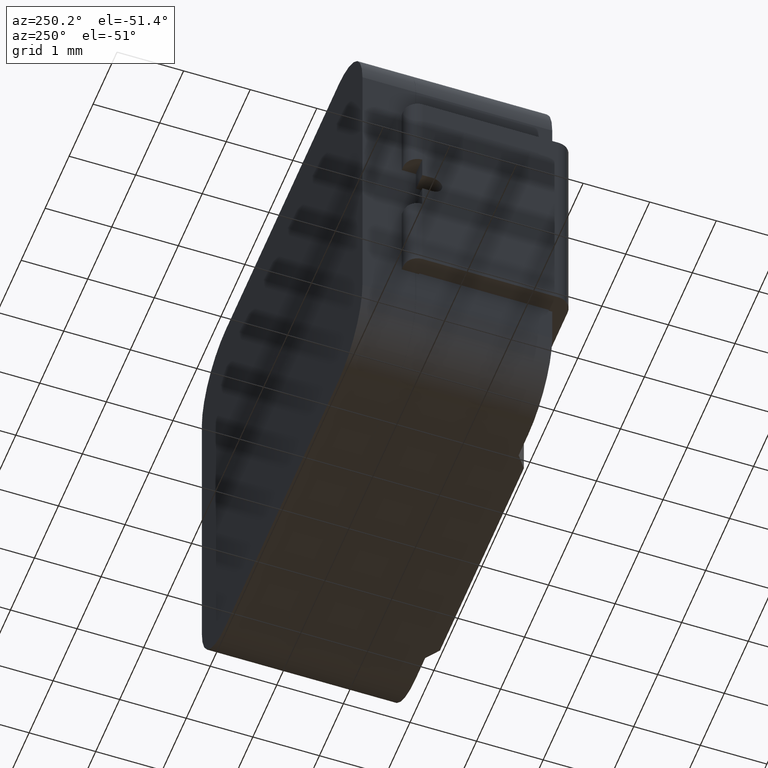
[diagram: clean part render]
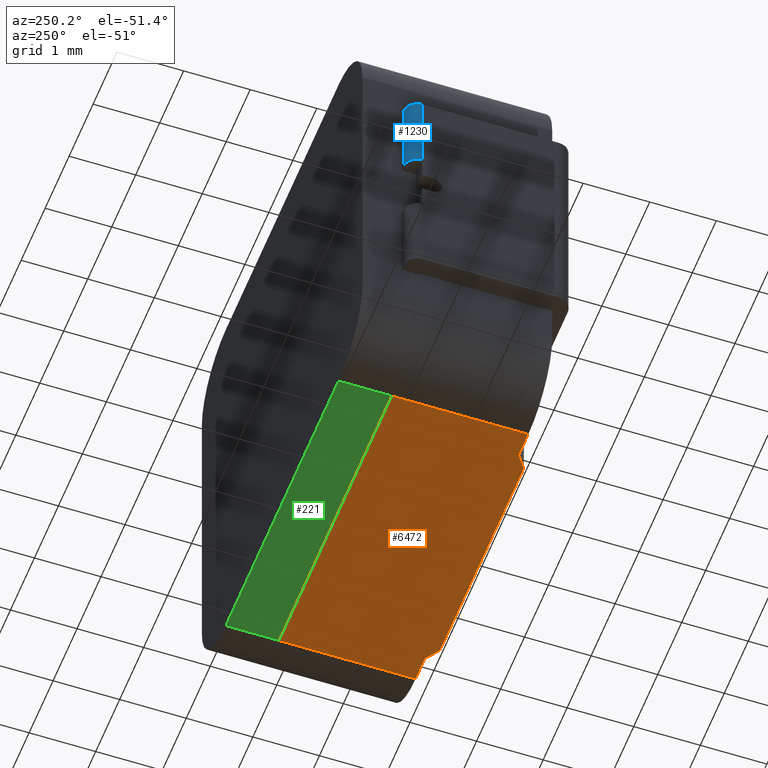
[diagram: same view with three faces highlighted in distinct colors, each labeled with its STEP entity id]
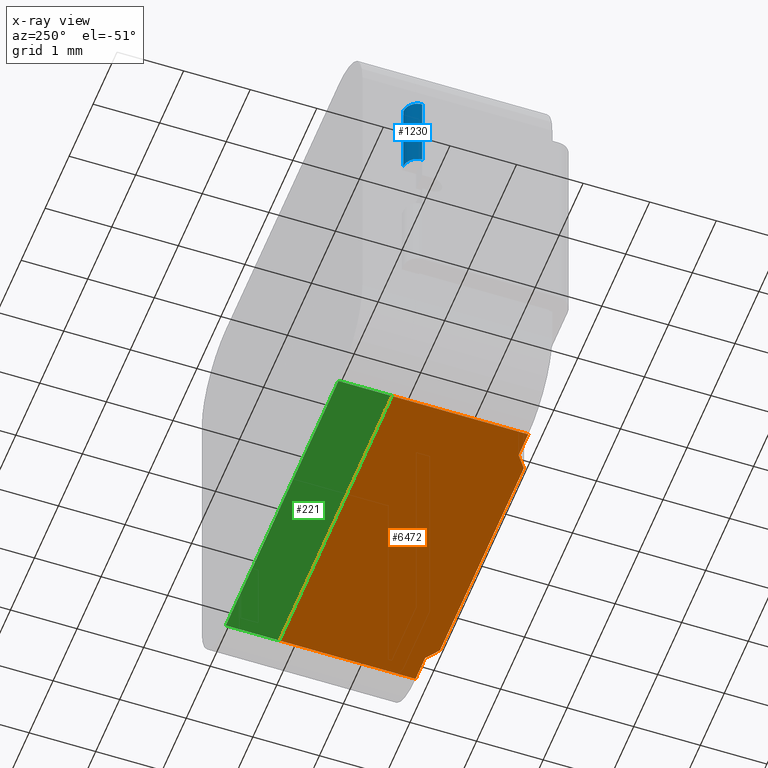
[diagram: x-ray of the same camera — body ghosted, the three highlighted faces saturated]
A machine part, auxiliary view with three faces highlighted in distinct colors.
The next image is the same camera in x-ray (body ghosted, the three faces saturated) — at least one of them is partly hidden behind the body in this view.
Their STEP definitions:

[orange] entity #6472 — the highlighted planar face has unit normal (0, -0, 1).
#198 = ORIENTED_EDGE ( 'NONE', *, *, #3639, .T. ) ;
#268 = VECTOR ( 'NONE', #1400, 1000.000000000000000 ) ;
#363 = LINE ( 'NONE', #6239, #3091 ) ;
#371 = DIRECTION ( 'NONE',  ( -0.7999999999999998224, -0.6000000000000001998, 0.0000000000000000000 ) ) ;
#544 = ORIENTED_EDGE ( 'NONE', *, *, #6163, .F. ) ;
#572 = VECTOR ( 'NONE', #4803, 1000.000000000000000 ) ;
#949 = DIRECTION ( 'NONE',  ( -1.000000000000000000, -6.001833454830465621E-16, 0.0000000000000000000 ) ) ;
#1012 = FACE_OUTER_BOUND ( 'NONE', #6102, .T. ) ;
#1151 = LINE ( 'NONE', #6232, #1495 ) ;
#1160 = VECTOR ( 'NONE', #371, 999.9999999999998863 ) ;
#1284 = VECTOR ( 'NONE', #4438, 1000.000000000000000 ) ;
#1400 = DIRECTION ( 'NONE',  ( -1.000000000000000000, -0.0000000000000000000, 2.589139516383295297E-16 ) ) ;
#1447 = CARTESIAN_POINT ( 'NONE',  ( 3.350000000000001865, 0.1500000000000007994, -3.350000000000001421 ) ) ;
#1495 = VECTOR ( 'NONE', #2049, 999.9999999999998863 ) ;
#1665 = ORIENTED_EDGE ( 'NONE', *, *, #2801, .T. ) ;
#1721 = EDGE_CURVE ( 'NONE', #4635, #4965, #5392, .T. ) ;
#1822 = ORIENTED_EDGE ( 'NONE', *, *, #5924, .T. ) ;
#1840 = LINE ( 'NONE', #3045, #1160 ) ;
#1966 = DIRECTION ( 'NONE',  ( -0.0000000000000000000, 1.000000000000000000, 0.0000000000000000000 ) ) ;
#2039 = LINE ( 'NONE', #5511, #1284 ) ;
#2049 = DIRECTION ( 'NONE',  ( -0.7999999999999998224, 0.6000000000000001998, -0.0000000000000000000 ) ) ;
#2299 = EDGE_CURVE ( 'NONE', #4921, #4729, #6666, .T. ) ;
#2366 = CARTESIAN_POINT ( 'NONE',  ( -3.350000000000000089, 3.000000000000000000, -3.349999999999999645 ) ) ;
#2801 = EDGE_CURVE ( 'NONE', #4949, #5472, #1151, .T. ) ;
#3045 = CARTESIAN_POINT ( 'NONE',  ( 1.950000000000000622, 0.1499999999999999667, -3.350000000000001421 ) ) ;
#3091 = VECTOR ( 'NONE', #3143, 1000.000000000000000 ) ;
#3143 = DIRECTION ( 'NONE',  ( -1.000000000000000000, 0.0000000000000000000, 2.589139516383295297E-16 ) ) ;
#3261 = CARTESIAN_POINT ( 'NONE',  ( 2.349999999999998312, 3.000000000000000000, -3.350000000000000977 ) ) ;
#3394 = LINE ( 'NONE', #4567, #268 ) ;
#3602 = EDGE_CURVE ( 'NONE', #4306, #4949, #3394, .T. ) ;
#3639 = EDGE_CURVE ( 'NONE', #4544, #4306, #1840, .T. ) ;
#3854 = PLANE ( 'NONE',  #5399 ) ;
#4194 = LINE ( 'NONE', #1447, #5321 ) ;
#4306 = VERTEX_POINT ( 'NONE', #5016 ) ;
#4438 = DIRECTION ( 'NONE',  ( -1.000000000000000000, 1.936075308009828246E-17, -0.0000000000000000000 ) ) ;
#4544 = VERTEX_POINT ( 'NONE', #6703 ) ;
#4567 = CARTESIAN_POINT ( 'NONE',  ( -3.350000000000000089, 0.0000000000000000000, -3.349999999999999645 ) ) ;
#4582 = CARTESIAN_POINT ( 'NONE',  ( -2.350000000000000533, 3.000000000000000000, -3.350000000000000089 ) ) ;
#4635 = VERTEX_POINT ( 'NONE', #5168 ) ;
#4694 = CARTESIAN_POINT ( 'NONE',  ( -2.350000000000000533, 2.200000000000000178, -3.350000000000000089 ) ) ;
#4715 = CARTESIAN_POINT ( 'NONE',  ( -1.749999999999999334, 0.0000000000000000000, -3.350000000000000089 ) ) ;
#4729 = VERTEX_POINT ( 'NONE', #4694 ) ;
#4764 = CARTESIAN_POINT ( 'NONE',  ( 2.349999999999998312, 0.1500000000000002165, -3.350000000000001421 ) ) ;
#4772 = ORIENTED_EDGE ( 'NONE', *, *, #2299, .T. ) ;
#4791 = CARTESIAN_POINT ( 'NONE',  ( -2.350000000000000533, 0.1499999999999999667, -3.350000000000001421 ) ) ;
#4803 = DIRECTION ( 'NONE',  ( 0.0000000000000000000, -1.000000000000000000, 0.0000000000000000000 ) ) ;
#4921 = VERTEX_POINT ( 'NONE', #4791 ) ;
#4932 = ORIENTED_EDGE ( 'NONE', *, *, #6586, .T. ) ;
#4949 = VERTEX_POINT ( 'NONE', #4715 ) ;
#4965 = VERTEX_POINT ( 'NONE', #4764 ) ;
#5016 = CARTESIAN_POINT ( 'NONE',  ( 1.750000000000000666, 0.0000000000000000000, -3.350000000000001421 ) ) ;
#5071 = CARTESIAN_POINT ( 'NONE',  ( -1.949999999999999289, 0.1499999999999999667, -3.350000000000001421 ) ) ;
#5168 = CARTESIAN_POINT ( 'NONE',  ( 2.349999999999998312, 2.200000000000000178, -3.350000000000000977 ) ) ;
#5321 = VECTOR ( 'NONE', #949, 1000.000000000000000 ) ;
#5331 = ORIENTED_EDGE ( 'NONE', *, *, #1721, .T. ) ;
#5392 = LINE ( 'NONE', #3261, #572 ) ;
#5399 = AXIS2_PLACEMENT_3D ( 'NONE', #2366, #6466, #5979 ) ;
#5472 = VERTEX_POINT ( 'NONE', #5071 ) ;
#5511 = CARTESIAN_POINT ( 'NONE',  ( -3.350000000000000089, 0.1499999999999999944, -3.350000000000001421 ) ) ;
#5827 = VECTOR ( 'NONE', #1966, 1000.000000000000000 ) ;
#5924 = EDGE_CURVE ( 'NONE', #5472, #4921, #2039, .T. ) ;
#5979 = DIRECTION ( 'NONE',  ( 1.000000000000000000, 0.0000000000000000000, -2.589139516383295297E-16 ) ) ;
#6102 = EDGE_LOOP ( 'NONE', ( #544, #5331, #4932, #198, #6334, #1665, #1822, #4772 ) ) ;
#6163 = EDGE_CURVE ( 'NONE', #4635, #4729, #363, .T. ) ;
#6232 = CARTESIAN_POINT ( 'NONE',  ( -1.949999999999999289, 0.1499999999999999667, -3.350000000000001421 ) ) ;
#6239 = CARTESIAN_POINT ( 'NONE',  ( -3.350000000000000089, 2.200000000000000178, -3.349999999999999645 ) ) ;
#6334 = ORIENTED_EDGE ( 'NONE', *, *, #3602, .T. ) ;
#6466 = DIRECTION ( 'NONE',  ( 2.589139516383295297E-16, -0.0000000000000000000, 1.000000000000000000 ) ) ;
#6472 = ADVANCED_FACE ( 'NONE', ( #1012 ), #3854, .F. ) ;
#6586 = EDGE_CURVE ( 'NONE', #4965, #4544, #4194, .T. ) ;
#6666 = LINE ( 'NONE', #4582, #5827 ) ;
#6703 = CARTESIAN_POINT ( 'NONE',  ( 1.950000000000000622, 0.1499999999999999667, -3.350000000000001421 ) ) ;

[blue] entity #1230 — the highlighted cylindrical surface (edge-blend (fillet) strip) has radius 0.21 mm, axis along (0, 0, -1).
#130 = LINE ( 'NONE', #4945, #4539 ) ;
#279 = ORIENTED_EDGE ( 'NONE', *, *, #3373, .T. ) ;
#391 = ORIENTED_EDGE ( 'NONE', *, *, #5953, .T. ) ;
#421 = EDGE_CURVE ( 'NONE', #5045, #5166, #4128, .T. ) ;
#864 = CARTESIAN_POINT ( 'NONE',  ( -3.625000000000001776, 2.200000000000000178, 0.4999999999999995559 ) ) ;
#942 = AXIS2_PLACEMENT_3D ( 'NONE', #2644, #6256, #2690 ) ;
#1174 = VECTOR ( 'NONE', #5946, 1000.000000000000000 ) ;
#1208 = CARTESIAN_POINT ( 'NONE',  ( -3.415000000000001368, 2.200000000000000178, 1.750000000000000000 ) ) ;
#1230 = ADVANCED_FACE ( 'NONE', ( #5444 ), #4386, .T. ) ;
#1883 = DIRECTION ( 'NONE',  ( 0.0000000000000000000, 0.0000000000000000000, -1.000000000000000000 ) ) ;
#2307 = CARTESIAN_POINT ( 'NONE',  ( -3.415000000000001368, 2.410000000000000142, 0.5000000000000000000 ) ) ;
#2452 = EDGE_CURVE ( 'NONE', #3156, #5045, #6734, .T. ) ;
#2474 = CARTESIAN_POINT ( 'NONE',  ( -3.415000000000001368, 2.410000000000000142, 1.750000000000000000 ) ) ;
#2644 = CARTESIAN_POINT ( 'NONE',  ( -3.415000000000001368, 2.200000000000000178, 1.750000000000000000 ) ) ;
#2690 = DIRECTION ( 'NONE',  ( 1.000000000000000000, 0.0000000000000000000, 0.0000000000000000000 ) ) ;
#2834 = EDGE_LOOP ( 'NONE', ( #5227, #391, #279, #3124 ) ) ;
#2989 = VERTEX_POINT ( 'NONE', #2307 ) ;
#3014 = DIRECTION ( 'NONE',  ( -0.0000000000000000000, -0.0000000000000000000, 1.000000000000000000 ) ) ;
#3124 = ORIENTED_EDGE ( 'NONE', *, *, #2452, .T. ) ;
#3156 = VERTEX_POINT ( 'NONE', #864 ) ;
#3301 = DIRECTION ( 'NONE',  ( 0.0000000000000000000, 0.0000000000000000000, -1.000000000000000000 ) ) ;
#3373 = EDGE_CURVE ( 'NONE', #2989, #3156, #6567, .T. ) ;
#4128 = CIRCLE ( 'NONE', #5244, 0.2100000000000001310 ) ;
#4386 = CYLINDRICAL_SURFACE ( 'NONE', #942, 0.2100000000000001310 ) ;
#4539 = VECTOR ( 'NONE', #1883, 1000.000000000000000 ) ;
#4630 = AXIS2_PLACEMENT_3D ( 'NONE', #6098, #3014, #6649 ) ;
#4822 = DIRECTION ( 'NONE',  ( 1.000000000000000000, 0.0000000000000000000, 0.0000000000000000000 ) ) ;
#4945 = CARTESIAN_POINT ( 'NONE',  ( -3.415000000000001368, 2.410000000000000142, 1.750000000000000000 ) ) ;
#5045 = VERTEX_POINT ( 'NONE', #5358 ) ;
#5166 = VERTEX_POINT ( 'NONE', #2474 ) ;
#5227 = ORIENTED_EDGE ( 'NONE', *, *, #421, .T. ) ;
#5244 = AXIS2_PLACEMENT_3D ( 'NONE', #1208, #3301, #4822 ) ;
#5358 = CARTESIAN_POINT ( 'NONE',  ( -3.625000000000001332, 2.200000000000000178, 1.750000000000000000 ) ) ;
#5444 = FACE_OUTER_BOUND ( 'NONE', #2834, .T. ) ;
#5946 = DIRECTION ( 'NONE',  ( -0.0000000000000000000, -0.0000000000000000000, 1.000000000000000000 ) ) ;
#5953 = EDGE_CURVE ( 'NONE', #5166, #2989, #130, .T. ) ;
#6008 = CARTESIAN_POINT ( 'NONE',  ( -3.625000000000001332, 2.200000000000000178, 1.750000000000000000 ) ) ;
#6098 = CARTESIAN_POINT ( 'NONE',  ( -3.415000000000001368, 2.200000000000000178, 0.5000000000000000000 ) ) ;
#6256 = DIRECTION ( 'NONE',  ( 0.0000000000000000000, 0.0000000000000000000, -1.000000000000000000 ) ) ;
#6567 = CIRCLE ( 'NONE', #4630, 0.2100000000000001310 ) ;
#6649 = DIRECTION ( 'NONE',  ( 1.000000000000000000, 0.0000000000000000000, 0.0000000000000000000 ) ) ;
#6734 = LINE ( 'NONE', #6008, #1174 ) ;

[green] entity #221 — the highlighted planar face has unit normal (0, -0, 1).
#28 = EDGE_CURVE ( 'NONE', #3973, #5133, #6073, .T. ) ;
#221 = ADVANCED_FACE ( 'NONE', ( #2123 ), #1682, .F. ) ;
#332 = CARTESIAN_POINT ( 'NONE',  ( -2.350000000000000533, 3.000000000000000000, -3.350000000000000089 ) ) ;
#622 = DIRECTION ( 'NONE',  ( 2.589139516383295297E-16, -0.0000000000000000000, 1.000000000000000000 ) ) ;
#872 = VECTOR ( 'NONE', #1608, 1000.000000000000000 ) ;
#1608 = DIRECTION ( 'NONE',  ( -0.0000000000000000000, 1.000000000000000000, 0.0000000000000000000 ) ) ;
#1682 = PLANE ( 'NONE',  #3617 ) ;
#1956 = DIRECTION ( 'NONE',  ( -1.000000000000000000, 0.0000000000000000000, 2.589139516383295297E-16 ) ) ;
#2123 = FACE_OUTER_BOUND ( 'NONE', #6571, .T. ) ;
#2378 = VECTOR ( 'NONE', #1956, 1000.000000000000000 ) ;
#2703 = CARTESIAN_POINT ( 'NONE',  ( 2.349999999999998312, 2.201000000000000068, -3.350000000000000977 ) ) ;
#2704 = VECTOR ( 'NONE', #6604, 1000.000000000000000 ) ;
#2732 = CARTESIAN_POINT ( 'NONE',  ( 2.349999999999998312, 3.000000000000000000, -3.350000000000000977 ) ) ;
#2793 = LINE ( 'NONE', #3969, #2704 ) ;
#3227 = CARTESIAN_POINT ( 'NONE',  ( -2.350000000000000533, 3.000000000000000000, -3.350000000000000089 ) ) ;
#3386 = VECTOR ( 'NONE', #3498, 1000.000000000000000 ) ;
#3498 = DIRECTION ( 'NONE',  ( 0.0000000000000000000, -1.000000000000000000, 0.0000000000000000000 ) ) ;
#3617 = AXIS2_PLACEMENT_3D ( 'NONE', #4844, #622, #4816 ) ;
#3801 = CARTESIAN_POINT ( 'NONE',  ( -2.350000000000000533, 2.201000000000000068, -3.350000000000000089 ) ) ;
#3822 = EDGE_CURVE ( 'NONE', #6300, #6771, #4495, .T. ) ;
#3969 = CARTESIAN_POINT ( 'NONE',  ( -3.350000000000000089, 3.000000000000000000, -3.349999999999999645 ) ) ;
#3973 = VERTEX_POINT ( 'NONE', #3801 ) ;
#4131 = ORIENTED_EDGE ( 'NONE', *, *, #28, .T. ) ;
#4367 = EDGE_CURVE ( 'NONE', #6300, #5133, #2793, .T. ) ;
#4393 = EDGE_CURVE ( 'NONE', #6771, #3973, #5113, .T. ) ;
#4495 = LINE ( 'NONE', #6627, #3386 ) ;
#4550 = CARTESIAN_POINT ( 'NONE',  ( -3.350000000000000089, 2.201000000000000068, -3.349999999999999645 ) ) ;
#4816 = DIRECTION ( 'NONE',  ( 1.000000000000000000, 0.0000000000000000000, -2.589139516383295297E-16 ) ) ;
#4844 = CARTESIAN_POINT ( 'NONE',  ( -3.350000000000000089, 3.000000000000000000, -3.349999999999999645 ) ) ;
#4870 = ORIENTED_EDGE ( 'NONE', *, *, #4393, .T. ) ;
#4958 = ORIENTED_EDGE ( 'NONE', *, *, #4367, .F. ) ;
#5113 = LINE ( 'NONE', #4550, #2378 ) ;
#5133 = VERTEX_POINT ( 'NONE', #332 ) ;
#5451 = ORIENTED_EDGE ( 'NONE', *, *, #3822, .T. ) ;
#6073 = LINE ( 'NONE', #3227, #872 ) ;
#6300 = VERTEX_POINT ( 'NONE', #2732 ) ;
#6571 = EDGE_LOOP ( 'NONE', ( #4870, #4131, #4958, #5451 ) ) ;
#6604 = DIRECTION ( 'NONE',  ( -1.000000000000000000, -0.0000000000000000000, 2.589139516383295297E-16 ) ) ;
#6627 = CARTESIAN_POINT ( 'NONE',  ( 2.349999999999998312, 3.000000000000000000, -3.350000000000000977 ) ) ;
#6771 = VERTEX_POINT ( 'NONE', #2703 ) ;